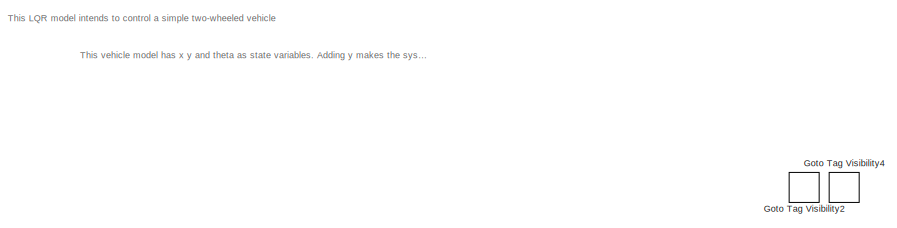
[diagram: root canvas - part 1/4, top center region]
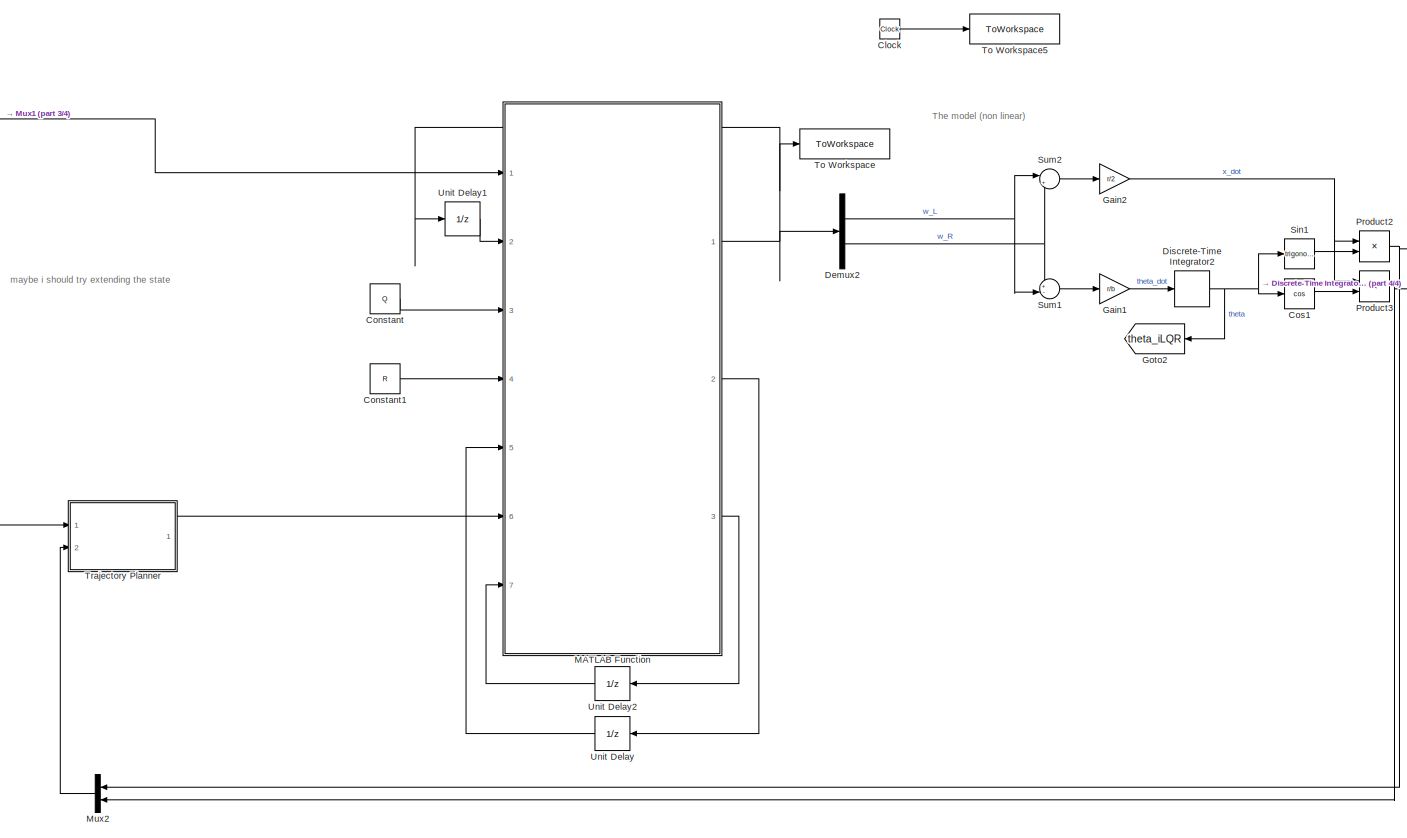
[diagram: root canvas - part 2/4, most of the canvas]
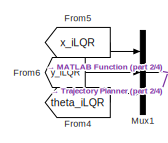
[diagram: root canvas - part 3/4, middle left region]
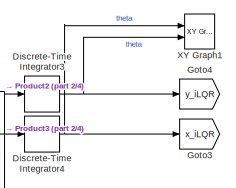
[diagram: root canvas - part 4/4, middle right region]
MODEL slx_b937c44ee35c
KIND model
CONFIG AbsTol = auto
CONFIG EnableMultiTasking = off
CONFIG FixedStep = 0.005
CONFIG MaxStep = 0.01
CONFIG MinStep = auto
CONFIG RelTol = 1e-3
CONFIG SampleTimeConstraint = Unconstrained
CONFIG SolverName = FixedStepDiscrete
CONFIG StartTime = 0.0
CONFIG StopTime = 50
BLOCK [Clock] Clock
BLOCK [Constant] Constant
  Value = Q
BLOCK [Constant] Constant1
  Value = R
BLOCK [Trigonometry] Cos1
  Operator = cos
  Ports = [1, 1]
BLOCK [Demux] Demux2
  Outputs = 2
  Ports = [1, 2]
BLOCK [DiscreteIntegrator] Discrete-Time Integrator2
  ICPrevOutput = DiscIntNeverNeededParam
  ICPrevScaledInput = DiscIntNeverNeededParam
  InitialConditionSetting = Auto
  Ports = [1, 1]
  SampleTime = -1
BLOCK [DiscreteIntegrator] Discrete-Time Integrator3
  ICPrevOutput = DiscIntNeverNeededParam
  ICPrevScaledInput = DiscIntNeverNeededParam
  InitialConditionSetting = Auto
  Ports = [1, 1]
  SampleTime = -1
BLOCK [DiscreteIntegrator] Discrete-Time Integrator4
  ICPrevOutput = DiscIntNeverNeededParam
  ICPrevScaledInput = DiscIntNeverNeededParam
  InitialConditionSetting = Auto
  Ports = [1, 1]
  SampleTime = -1
BLOCK [From] From4
  GotoTag = theta_iLQR
BLOCK [From] From5
  GotoTag = x_iLQR
BLOCK [From] From6
  GotoTag = y_iLQR
BLOCK [Gain] Gain1
  Gain = r/b
BLOCK [Gain] Gain2
  Gain = r/2
BLOCK [GotoTagVisibility] Goto Tag Visibility2
  GotoTag = x
BLOCK [GotoTagVisibility] Goto Tag Visibility4
  GotoTag = theta
BLOCK [Goto] Goto2
  GotoTag = theta_iLQR
BLOCK [Goto] Goto3
  GotoTag = x_iLQR
BLOCK [Goto] Goto4
  GotoTag = y_iLQR
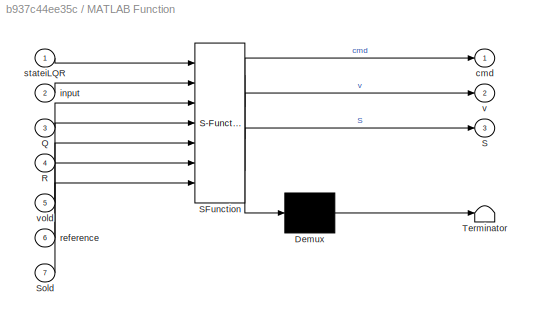
BLOCK [SubSystem] MATLAB Function
  ErrorFcn = Stateflow.Translate.translate
  PermitHierarchicalResolution = ExplicitOnly
  Ports = [7, 3]
  RequestExecContextInheritance = off
  SFBlockType = MATLAB Function
  TreatAsAtomicUnit = on
BLOCK [Demux] MATLAB Function/ Demux 
  Outputs = 1
  Ports = [1, 1]
BLOCK [S-Function] MATLAB Function/ SFunction 
  EnableBusSupport = on
  FunctionName = sf_sfun
  PortCounts = [7 4]
  Ports = [7, 4]
  SFcnIsStateOwnerBlock = off
  SFunctionDeploymentMode = off
  Tag = Stateflow S-Function 2
BLOCK [Terminator] MATLAB Function/ Terminator 
BLOCK [Inport] MATLAB Function/Q
  Port = 3
BLOCK [Inport] MATLAB Function/R
  Port = 4
BLOCK [Outport] MATLAB Function/S
  Port = 3
BLOCK [Inport] MATLAB Function/Sold
  Port = 7
BLOCK [Outport] MATLAB Function/cmd
BLOCK [Inport] MATLAB Function/input
  Port = 2
BLOCK [Inport] MATLAB Function/reference
  Port = 6
BLOCK [Inport] MATLAB Function/stateiLQR
BLOCK [Outport] MATLAB Function/v
  Port = 2
BLOCK [Inport] MATLAB Function/vold
  Port = 5
BLOCK [Mux] Mux1
  DisplayOption = bar
  Inputs = 3
  Ports = [3, 1]
BLOCK [Mux] Mux2
  DisplayOption = bar
  Inputs = 2
  Ports = [2, 1]
BLOCK [Product] Product2
  Ports = [2, 1]
BLOCK [Product] Product3
  Ports = [2, 1]
BLOCK [Trigonometry] Sin1
  Ports = [1, 1]
BLOCK [Sum] Sum1
  Inputs = +-|
  Ports = [2, 1]
BLOCK [Sum] Sum2
  Inputs = |++
  Ports = [2, 1]
BLOCK [ToWorkspace] To Workspace
  FixptAsFi = on
  MaxDataPoints = inf
  Ports = [1]
  SampleTime = -1
  VariableName = w
BLOCK [ToWorkspace] To Workspace5
  FixptAsFi = on
  MaxDataPoints = inf
  Ports = [1]
  SampleTime = -1
  VariableName = time
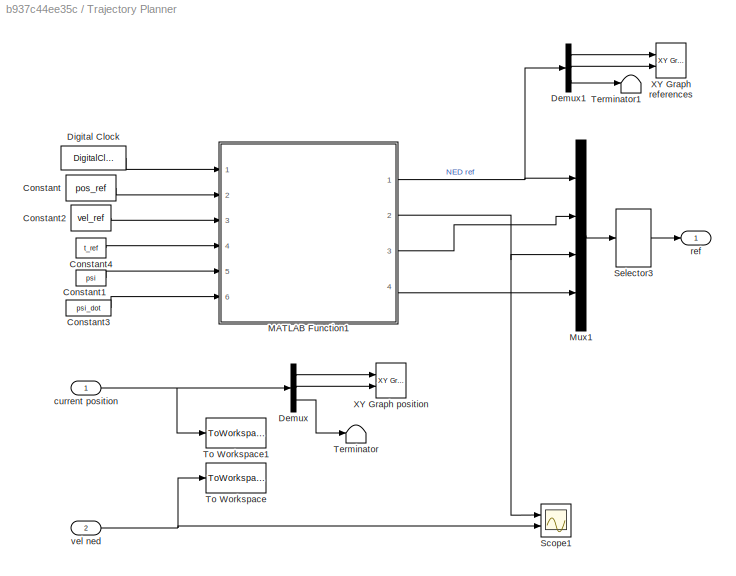
BLOCK [SubSystem] Trajectory Planner
  Ports = [2, 1]
  RequestExecContextInheritance = off
BLOCK [Constant] Trajectory Planner/Constant
  Value = pos_ref
BLOCK [Constant] Trajectory Planner/Constant1
  Value = psi
BLOCK [Constant] Trajectory Planner/Constant2
  Value = vel_ref
BLOCK [Constant] Trajectory Planner/Constant3
  Value = psi_dot
BLOCK [Constant] Trajectory Planner/Constant4
  Value = t_ref
BLOCK [Demux] Trajectory Planner/Demux
  Outputs = 3
  Ports = [1, 3]
BLOCK [Demux] Trajectory Planner/Demux1
  Outputs = 3
  Ports = [1, 3]
BLOCK [DigitalClock] Trajectory Planner/Digital Clock
  SampleTime = -1
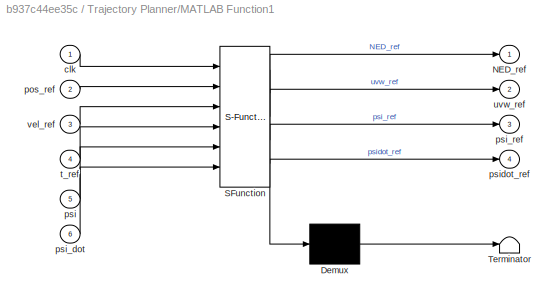
BLOCK [SubSystem] Trajectory Planner/MATLAB Function1
  ErrorFcn = Stateflow.Translate.translate
  PermitHierarchicalResolution = ExplicitOnly
  Ports = [6, 4]
  RequestExecContextInheritance = off
  SFBlockType = MATLAB Function
  TreatAsAtomicUnit = on
BLOCK [Demux] Trajectory Planner/MATLAB Function1/ Demux 
  Outputs = 1
  Ports = [1, 1]
BLOCK [S-Function] Trajectory Planner/MATLAB Function1/ SFunction 
  EnableBusSupport = on
  FunctionName = sf_sfun
  PortCounts = [6 5]
  Ports = [6, 5]
  SFcnIsStateOwnerBlock = off
  SFunctionDeploymentMode = off
  Tag = Stateflow S-Function 3
BLOCK [Terminator] Trajectory Planner/MATLAB Function1/ Terminator 
BLOCK [Outport] Trajectory Planner/MATLAB Function1/NED_ref
  VectorParamsAs1DForOutWhenUnconnected = off
BLOCK [Inport] Trajectory Planner/MATLAB Function1/clk
BLOCK [Inport] Trajectory Planner/MATLAB Function1/pos_ref
  Port = 2
BLOCK [Inport] Trajectory Planner/MATLAB Function1/psi
  Port = 5
BLOCK [Inport] Trajectory Planner/MATLAB Function1/psi_dot
  Port = 6
BLOCK [Outport] Trajectory Planner/MATLAB Function1/psi_ref
  Port = 3
BLOCK [Outport] Trajectory Planner/MATLAB Function1/psidot_ref
  Port = 4
BLOCK [Inport] Trajectory Planner/MATLAB Function1/t_ref
  Port = 4
BLOCK [Outport] Trajectory Planner/MATLAB Function1/uvw_ref
  Port = 2
  VectorParamsAs1DForOutWhenUnconnected = off
BLOCK [Inport] Trajectory Planner/MATLAB Function1/vel_ref
  Port = 3
BLOCK [Mux] Trajectory Planner/Mux1
  DisplayOption = bar
  Ports = [4, 1]
BLOCK [Scope] Trajectory Planner/Scope1
  Floating = off
  NumInputPorts = 2
  Ports = [2]
  ScopeSpecificationString = Simulink.scopes.TimeScopeBlockCfg('CurrentConfiguration', extmgr.ConfigurationSet(extmgr.Configuration('Core','General UI',true),extmgr.Configuration('Core','Source UI',true),extmgr.Configuration('Sources','WiredSimulink',true,'DataLoggingVariableName','ScopeData2'),extmgr.Configuration('Visuals','Time Domain',true,'SerializedDisplays',{struct('MinYLimReal','-1.64228','MaxYLimReal','2.23128','YLab...<+1689ch>
BLOCK [Selector] Trajectory Planner/Selector3
  IndexOptions = Index vector (dialog)
  Indices = [1 5 2 6 4 3 7 8]
  InputPortWidth = 8
  OutputSizes = 1
  Ports = [1, 1]
BLOCK [Terminator] Trajectory Planner/Terminator
BLOCK [Terminator] Trajectory Planner/Terminator1
BLOCK [ToWorkspace] Trajectory Planner/To Workspace
  FixptAsFi = on
  MaxDataPoints = inf
  Ports = [1]
  SampleTime = -1
  SaveFormat = Timeseries
  VariableName = realVel
BLOCK [ToWorkspace] Trajectory Planner/To Workspace1
  FixptAsFi = on
  MaxDataPoints = inf
  Ports = [1]
  SampleTime = -1
  SaveFormat = Timeseries
  VariableName = realPos
BLOCK [Reference] Trajectory Planner/XY Graph position  REF=simulink/Sinks/XY Graph
  Ports = [2]
  SourceBlock = simulink/Sinks/XY Graph
  SourceProductBaseCode = SL
  SourceType = XY scope.
BLOCK [Reference] Trajectory Planner/XY Graph references  REF=simulink/Sinks/XY Graph
  Ports = [2]
  SourceBlock = simulink/Sinks/XY Graph
  SourceProductBaseCode = SL
  SourceType = XY scope.
BLOCK [Inport] Trajectory Planner/current position
BLOCK [Outport] Trajectory Planner/ref
  VectorParamsAs1DForOutWhenUnconnected = off
BLOCK [Inport] Trajectory Planner/vel ned
  Port = 2
BLOCK [UnitDelay] Unit Delay
  HasFrameUpgradeWarning = on
  InitialCondition = zeros(3,1)
  SampleTime = -1
BLOCK [UnitDelay] Unit Delay1
  HasFrameUpgradeWarning = on
  InitialCondition = [0, 0]
  SampleTime = -1
BLOCK [UnitDelay] Unit Delay2
  HasFrameUpgradeWarning = on
  InitialCondition = Qf
  SampleTime = -1
BLOCK [Reference] XY Graph1  REF=simulink/Sinks/XY Graph
  Ports = [2]
  SourceBlock = simulink/Sinks/XY Graph
  SourceProductBaseCode = SL
  SourceType = XY scope.
ANNOTATION (root): The model (non linear)
ANNOTATION (root): This LQR model intends to control a simple two-wheeled vehicle
ANNOTATION (root): This vehicle model has x y and theta as state variables. Adding y makes the system non-controllable. This instability has been solved by adding deltav in A matrix giving v (wr+wl) a small non zero value at all times
ANNOTATION (root): maybe i should try extending the state
LINE Clock:1 -> To Workspace5:1
LINE Constant1:1 -> MATLAB Function:4
LINE Constant:1 -> MATLAB Function:3
LINE Cos1:1 -> Product3:2
NET Demux2:1 -> Sum1:2, Sum2:1
NET Demux2:2 -> Sum1:1, Sum2:2
NET Discrete-Time Integrator2:1 -> Cos1:1, Goto2:1, Sin1:1
NET Discrete-Time Integrator3:1 -> Goto4:1, XY Graph1:2
NET Discrete-Time Integrator4:1 -> Goto3:1, XY Graph1:1
LINE From4:1 -> Mux1:3
LINE From5:1 -> Mux1:1
LINE From6:1 -> Mux1:2
LINE Gain1:1 -> Discrete-Time Integrator2:1
NET Gain2:1 -> Product2:1, Product3:1
NET MATLAB Function:1 -> Demux2:1, To Workspace:1, Unit Delay1:1
LINE MATLAB Function:2 -> Unit Delay:1
LINE MATLAB Function:3 -> Unit Delay2:1
NET Mux1:1 -> MATLAB Function:1, Trajectory Planner:1
LINE Mux2:1 -> Trajectory Planner:2
NET Product2:1 -> Discrete-Time Integrator3:1, Mux2:1
NET Product3:1 -> Discrete-Time Integrator4:1, Mux2:2
LINE Sin1:1 -> Product2:2
LINE Sum1:1 -> Gain1:1
LINE Sum2:1 -> Gain2:1
LINE Trajectory Planner/Constant1:1 -> Trajectory Planner/MATLAB Function1:5
LINE Trajectory Planner/Constant2:1 -> Trajectory Planner/MATLAB Function1:3
LINE Trajectory Planner/Constant3:1 -> Trajectory Planner/MATLAB Function1:6
LINE Trajectory Planner/Constant4:1 -> Trajectory Planner/MATLAB Function1:4
LINE Trajectory Planner/Constant:1 -> Trajectory Planner/MATLAB Function1:2
LINE Trajectory Planner/Demux1:1 -> Trajectory Planner/XY Graph references:1
LINE Trajectory Planner/Demux1:2 -> Trajectory Planner/XY Graph references:2
LINE Trajectory Planner/Demux1:3 -> Trajectory Planner/Terminator1:1
LINE Trajectory Planner/Demux:1 -> Trajectory Planner/XY Graph position:1
LINE Trajectory Planner/Demux:2 -> Trajectory Planner/XY Graph position:2
LINE Trajectory Planner/Demux:3 -> Trajectory Planner/Terminator:1
LINE Trajectory Planner/Digital Clock:1 -> Trajectory Planner/MATLAB Function1:1
NET Trajectory Planner/MATLAB Function1:1 -> Trajectory Planner/Demux1:1, Trajectory Planner/Mux1:1
NET Trajectory Planner/MATLAB Function1:2 -> Trajectory Planner/Mux1:3, Trajectory Planner/Scope1:1
LINE Trajectory Planner/MATLAB Function1:3 -> Trajectory Planner/Mux1:2
LINE Trajectory Planner/MATLAB Function1:4 -> Trajectory Planner/Mux1:4
LINE Trajectory Planner/Mux1:1 -> Trajectory Planner/Selector3:1
LINE Trajectory Planner/Selector3:1 -> Trajectory Planner/ref:1
NET Trajectory Planner/current position:1 -> Trajectory Planner/Demux:1, Trajectory Planner/To Workspace1:1
NET Trajectory Planner/vel ned:1 -> Trajectory Planner/Scope1:2, Trajectory Planner/To Workspace:1
LINE Trajectory Planner:1 -> MATLAB Function:6
LINE Unit Delay1:1 -> MATLAB Function:2
LINE Unit Delay2:1 -> MATLAB Function:7
LINE Unit Delay:1 -> MATLAB Function:5
note: NET lines group one-source signal fan-out (src -> all destinations, sorted); 1:1 wires keep LINE
CHART MATLAB Function states=1 transitions=1
  STATE_LABEL 'eML_blk_kernel()'
  STATE_LABEL 'SCRIPT:\nfunction [cmd, v, S]= fcn(stateiLQR, input , Q, R, vold, reference, Sold)\n\nr = 0.02;\nb = 0.185;\ndt = 0.001;\n\n% toll = 3*10^-5;\n\n% A = [1 0 dt*-sin(psi)*r/2*(wR+wL);...\n%      0 1 dt*cos(psi)*r/2*(wR+wL);...\n%      0 0 1];\n% B = dt*[cos(psi)*r/2 cos(psi)*r/2;...\n%      sin(psi)*r/2 sin(psi)*r/2;...\n%      -r/b r/b];\n% A = eye(3);\n% B = dt*[r/2 r/2;\n%      0 0;\n%      -r/b r/b];\ndeltav = 0.0...<+948ch>'
CHART Trajectory Planner/MATLAB Function1 states=1 transitions=1
  STATE_LABEL 'eML_blk_kernel()'
  STATE_LABEL 'SCRIPT:\nfunction [ NED_ref, uvw_ref, psi_ref,psidot_ref] = trajectoryPlanner(clk,pos_ref,vel_ref,t_ref,psi,psi_dot)\n\ncurrTime = find(clk >= t_ref);\nNED_ref = pos_ref(currTime(end),:);\nuvw_ref = vel_ref(currTime(end),:);\npsi_ref = psi(currTime(end),:);\npsidot_ref = psi_dot(currTime(end),:);\nend\n'
CHART  states=0 transitions=0
CHART  states=0 transitions=0
